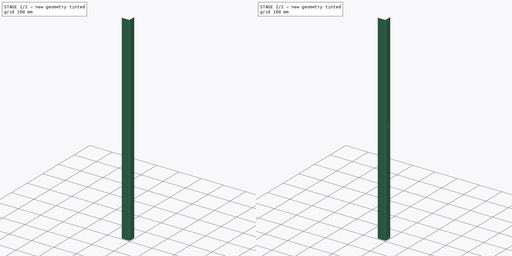
[diagram: build sequence overview — one tinted view per stage of 2, left to right]
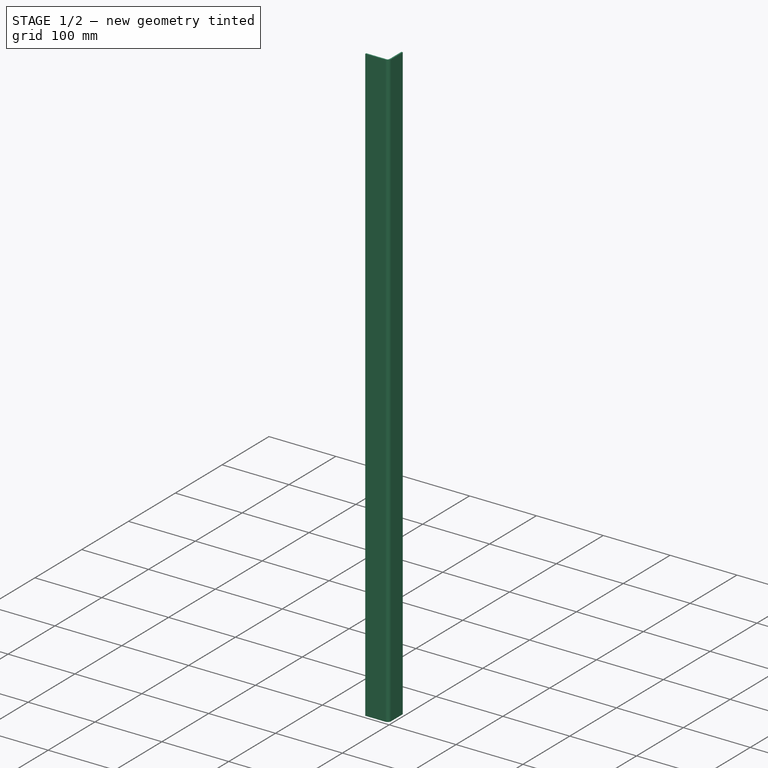
[diagram: stage 1 of 2 — iso view after this stage's code; geometry added in this stage tinted green]
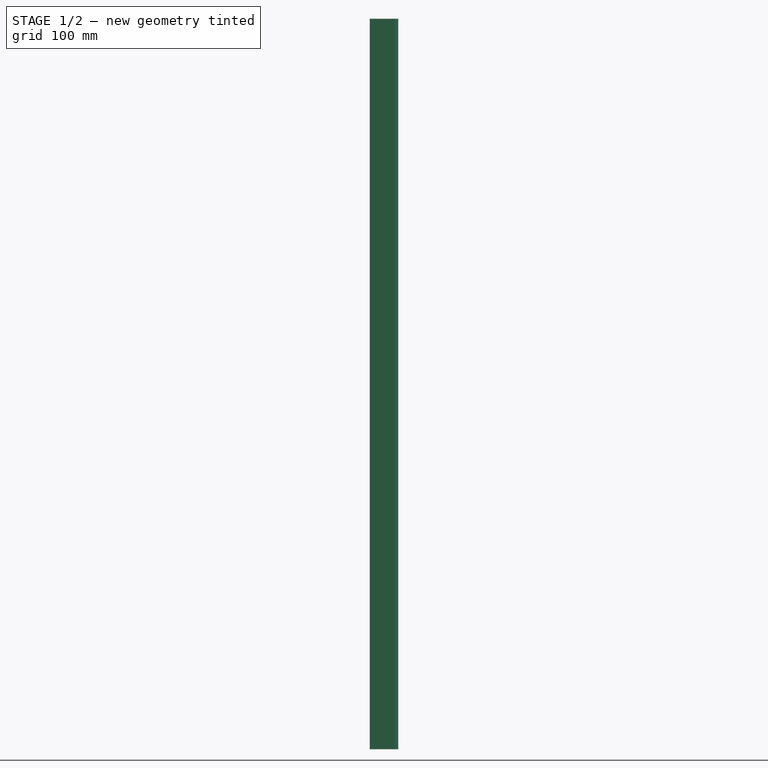
[diagram: stage 1 of 2 — front view after this stage's code; geometry added in this stage tinted green]
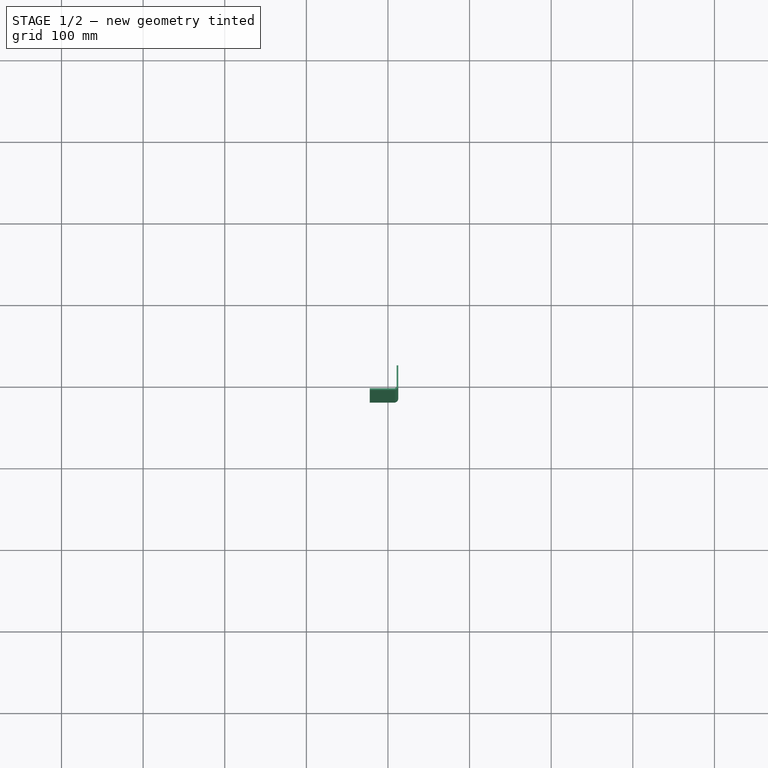
[diagram: stage 1 of 2 — top view after this stage's code; geometry added in this stage tinted green]
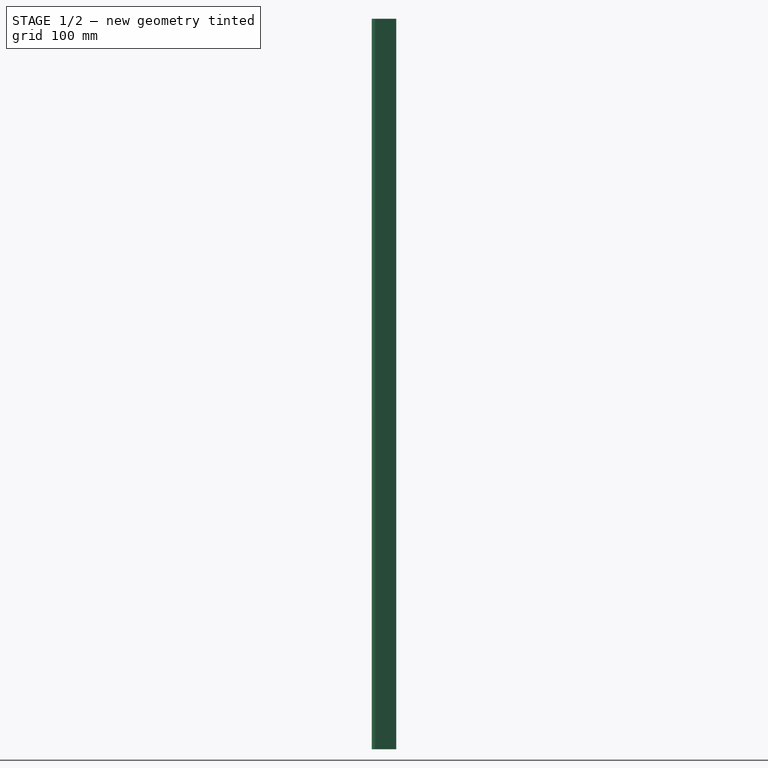
[diagram: stage 1 of 2 — right view after this stage's code; geometry added in this stage tinted green]
FCSTD DOCUMENT  (FreeCAD 0.16R6698 (Git))
Label: Equerre serveur droite
License: All rights reserved
LicenseURL: http://en.wikipedia.org/wiki/All_rights_reserved
objects: Sketcher::SketchObject×2, PartDesign::Pad×1, PartDesign::Pocket×1
note: 6 computed .brp shape members not serialized (recipe doc carries the construction recipe); baked Part::Feature solids carry a one-line shape summary decoded from their .brp

FEATURE [Sketcher::SketchObject] Sketch
  sketch-geometry (8):
    g0: LineSegment StartX=10.6474 StartY=10.904 StartZ=0 EndX=12.6474 EndY=10.904 EndZ=0
    g1: LineSegment StartX=10.6474 StartY=-14.096 StartZ=0 EndX=10.6474 EndY=10.904 EndZ=0
    g2: LineSegment StartX=7.64739 StartY=-19.096 StartZ=0 EndX=-22.3526 EndY=-19.096 EndZ=0
    g3: LineSegment StartX=-22.3526 StartY=-19.096 StartZ=0 EndX=-22.3526 EndY=-17.096 EndZ=0
    g4: LineSegment StartX=-22.3526 StartY=-17.096 StartZ=0 EndX=7.64739 EndY=-17.096 EndZ=0
    g5: LineSegment StartX=12.6474 StartY=10.904 StartZ=0 EndX=12.6474 EndY=-14.096 EndZ=0
    g6: ArcOfCircle CenterX=7.64739 CenterY=-14.096 CenterZ=0 NormalX=0 NormalY=0 NormalZ=1 Radius=3 StartAngle=4.71239 EndAngle=6.28319
    g7: ArcOfCircle CenterX=7.64739 CenterY=-14.096 CenterZ=0 NormalX=0 NormalY=0 NormalZ=1 Radius=5 StartAngle=4.71239 EndAngle=6.28319
  constraints (20):
    c: Coincident(g1,g0)
    c: Horizontal(g0)
    c: Vertical(g1)
    c: Coincident(g2,g3)
    c: Coincident(g3,g4)
    c: Horizontal(g2)
    c: Horizontal(g4)
    c: Vertical(g3)
    c: Vertical(g5)
    c: Coincident(g5,g0)
    c: Tangent(g1,g6) = -1.5708
    c: Tangent(g4,g6) = -1.5708
    c: Tangent(g2,g7) = 1.5708
    c: Tangent(g5,g7) = 1.5708
    c: Radius(g6) = 3
    c: Radius(g7) = 5
    c: DistanceX(g0,g0) = 2
    c: DistanceY(g3,g3) = 2
    c: DistanceX(g4,g4) = 30
    c: DistanceY(g1,g1) = 25
FEATURE [PartDesign::Pad] Pad
  Length = 895
  Length2 = 100
  Sketch = -> Sketch
  Type = 0
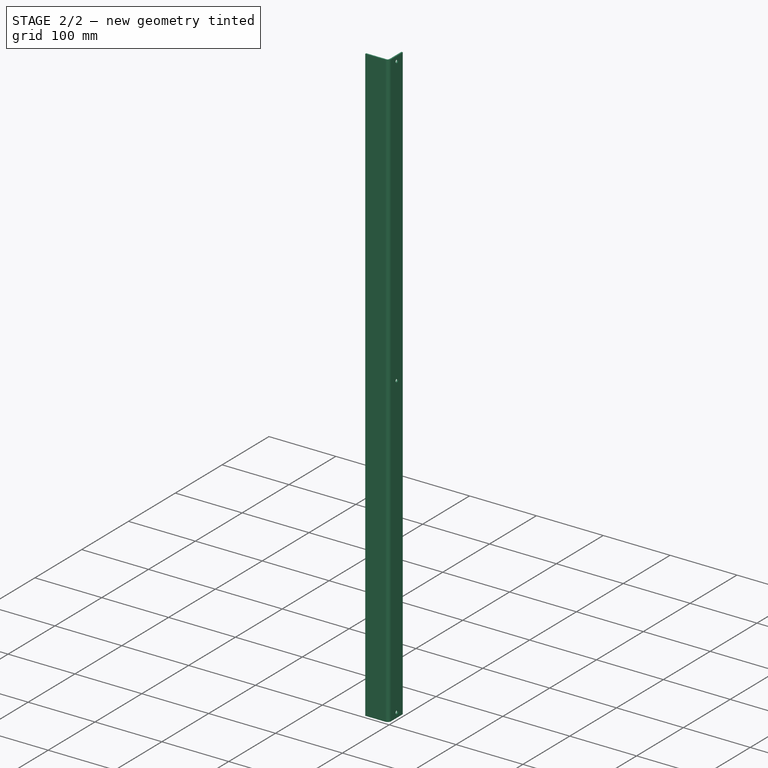
[diagram: stage 2 of 2 — iso view after this stage's code; geometry added in this stage tinted green]
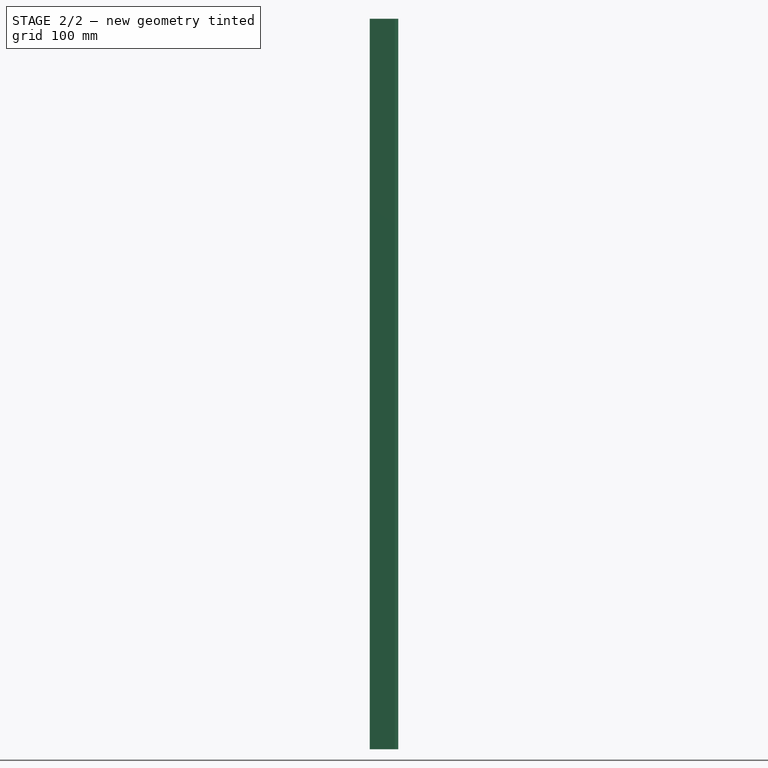
[diagram: stage 2 of 2 — front view after this stage's code; geometry added in this stage tinted green]
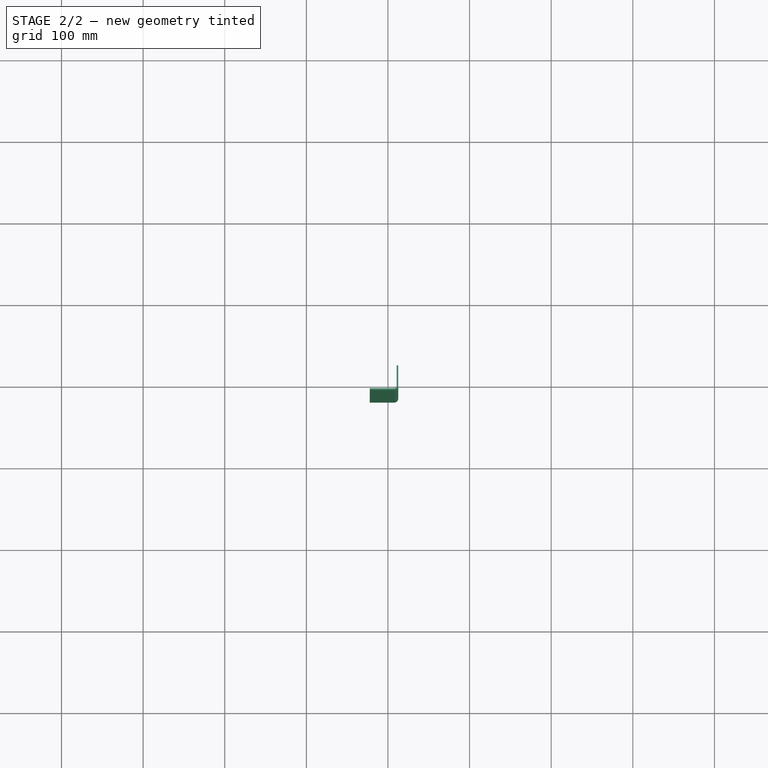
[diagram: stage 2 of 2 — top view after this stage's code; geometry added in this stage tinted green]
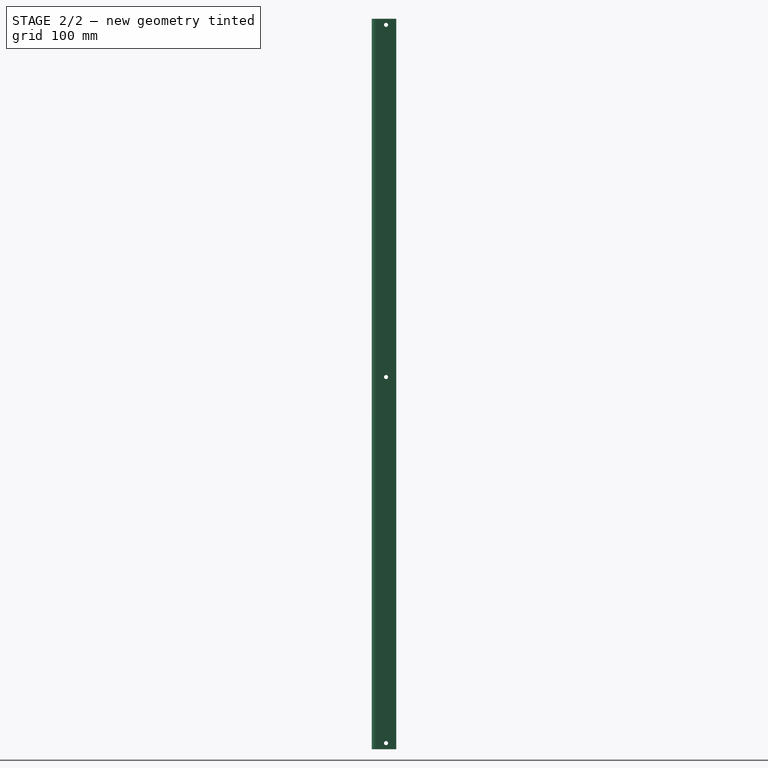
[diagram: stage 2 of 2 — right view after this stage's code; geometry added in this stage tinted green]
FEATURE [Sketcher::SketchObject] Sketch001
  ExternalGeometry = -> [Pad]
  Placement = pos=(10.6474,0,0) rot=(0.57735,-0.57735,-0.57735;2.0944rad)
  Support = -> Pad [Face5]
  sketch-geometry (3):
    g0: Circle CenterX=1.59605 CenterY=7.5 CenterZ=0 NormalX=0 NormalY=0 NormalZ=1 Radius=2.5
    g1: Circle CenterX=1.59605 CenterY=456 CenterZ=0 NormalX=0 NormalY=0 NormalZ=1 Radius=2.5
    g2: Circle CenterX=1.59605 CenterY=887.5 CenterZ=0 NormalX=0 NormalY=0 NormalZ=1 Radius=2.5
  constraints (9):
    c: Radius(g2) = 2.5
    c: Equal(g2,g1)
    c: Equal(g2,g0)
    c: DistanceX(g-4,g0) = 12.5
    c: DistanceY(g-4,g0) = 7.5
    c: DistanceX(g0,g1) = 0
    c: DistanceX(g1,g2) = 0
    c: DistanceY(g2,g-3) = 7.5
    c: DistanceY(g1,g-3) = 439
FEATURE [PartDesign::Pocket] Pocket
  Length = 5
  Sketch = -> Sketch001
  Type = 0
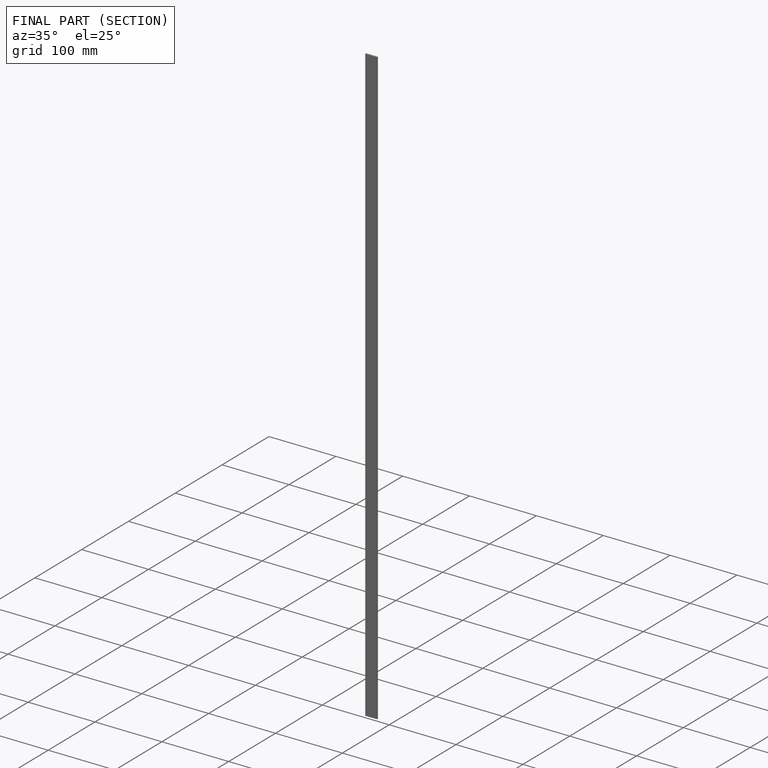
[diagram: finished part — half-section view (interior)]
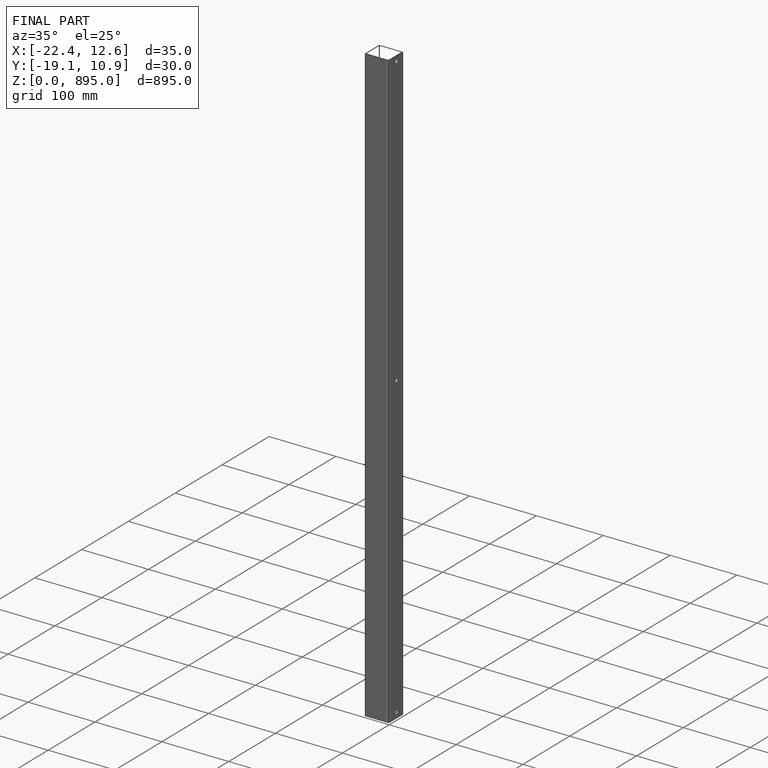
[diagram: finished part — iso view with bounding-box wireframe]
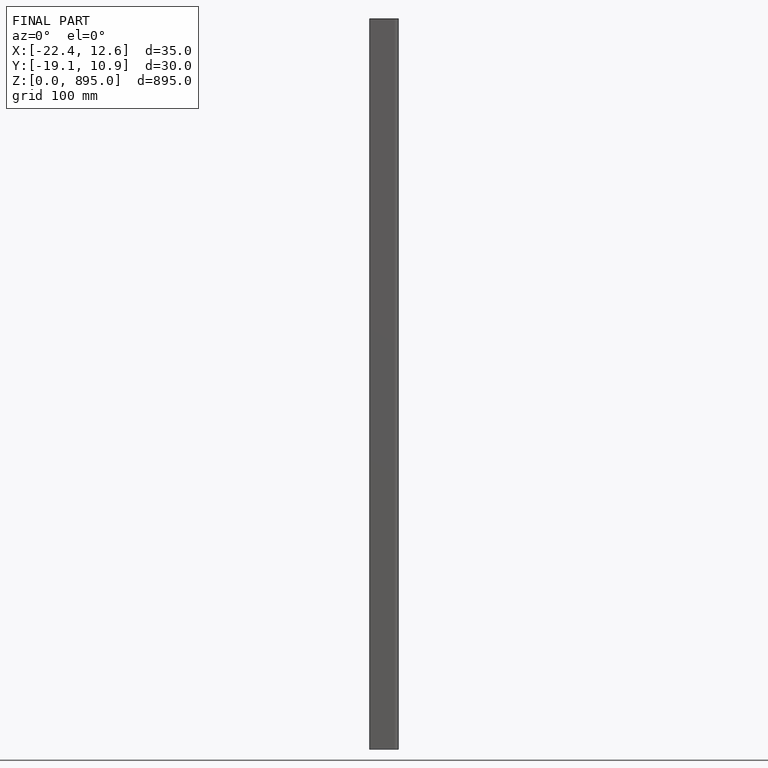
[diagram: finished part — front view with bounding-box wireframe]
